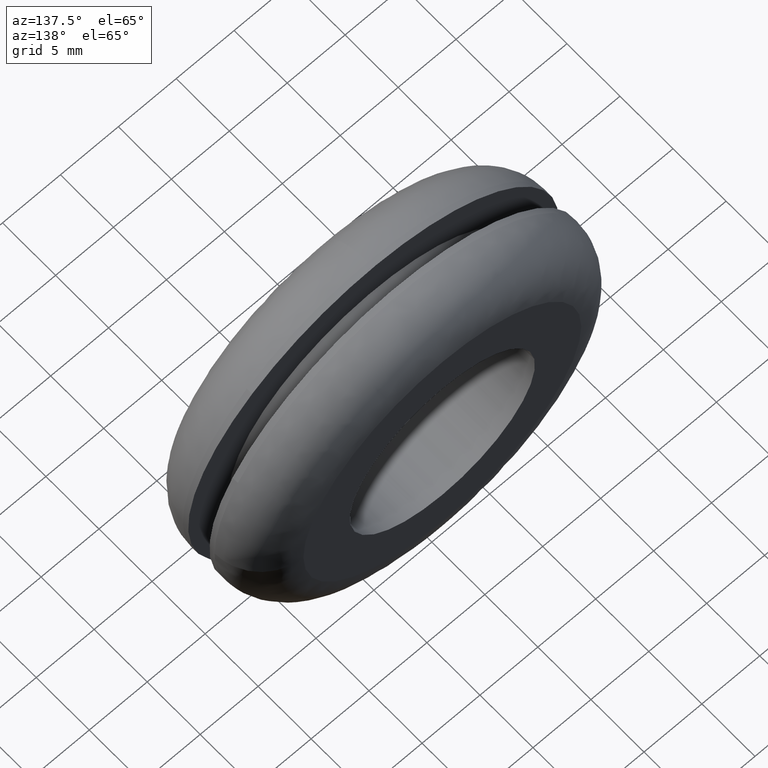
[diagram: clean part render]
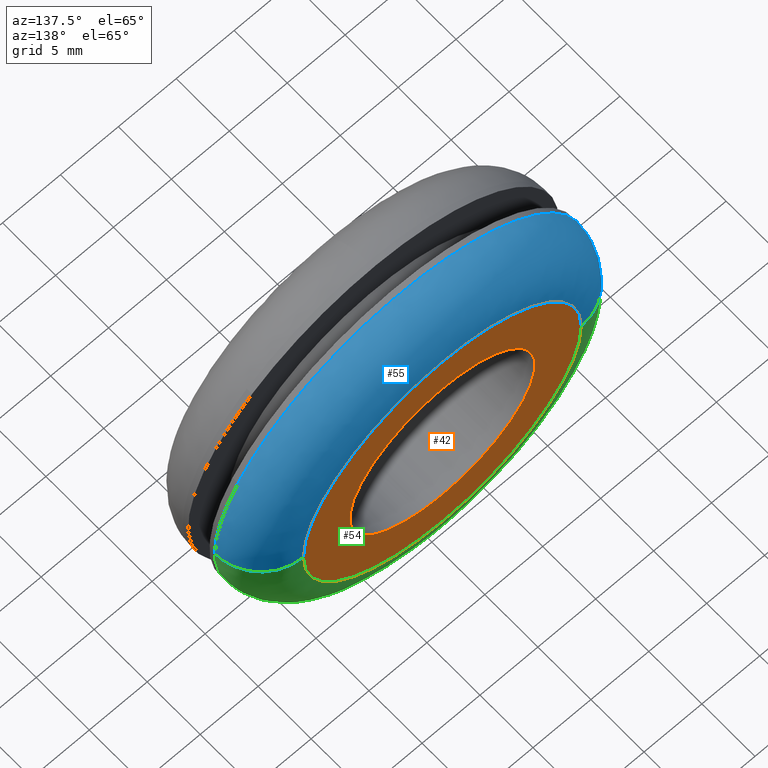
[diagram: same view with three faces highlighted in distinct colors, each labeled with its STEP entity id]
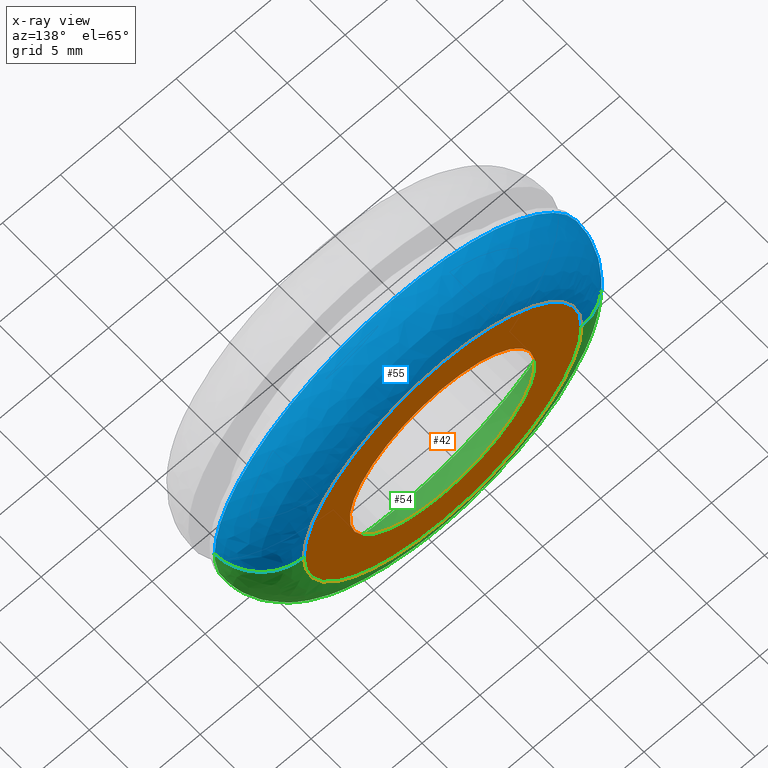
[diagram: x-ray of the same camera — body ghosted, the three highlighted faces saturated]
A machine part, auxiliary view with three faces highlighted in distinct colors.
The next image is the same camera in x-ray (body ghosted, the three faces saturated) — at least one of them is partly hidden behind the body in this view.
Their STEP definitions:

[orange] entity #42 — the highlighted planar face has unit normal (0, -1, 0).
#42=ADVANCED_FACE('',(#79,#80),#78,.F.);
#78=PLANE('',#235);
#79=FACE_OUTER_BOUND('',#236,.T.);
#80=FACE_BOUND('',#237,.T.);
#232=CARTESIAN_POINT('',(-2.49415316305E+001,1.10000000000E+001,2.76000000010E+001));
#233=DIRECTION('',(0.00000000000E+000,-1.00000000000E+000,0.00000000000E+000));
#234=DIRECTION('',(0.00000000000E+000,0.00000000000E+000,-1.00000000000E+000));
#235=AXIS2_PLACEMENT_3D('',#232,#233,#234);
#236=EDGE_LOOP('',(#400,#401,#402));
#237=EDGE_LOOP('',(#403,#404,#405));
#400=ORIENTED_EDGE('',*,*,#496,.F.);
#401=ORIENTED_EDGE('',*,*,#497,.F.);
#402=ORIENTED_EDGE('',*,*,#498,.F.);
#403=ORIENTED_EDGE('',*,*,#499,.T.);
#404=ORIENTED_EDGE('',*,*,#500,.T.);
#405=ORIENTED_EDGE('',*,*,#501,.T.);
#496=EDGE_CURVE('',#616,#617,#618,.T.);
#497=EDGE_CURVE('',#624,#616,#625,.T.);
#498=EDGE_CURVE('',#617,#624,#631,.T.);
#499=EDGE_CURVE('',#637,#638,#639,.T.);
#500=EDGE_CURVE('',#638,#645,#646,.T.);
#501=EDGE_CURVE('',#645,#637,#652,.T.);
#616=VERTEX_POINT('',#916);
#617=VERTEX_POINT('',#917);
#618=CIRCLE('',#921,1.20000000007E+001);
#624=VERTEX_POINT('',#922);
#625=CIRCLE('',#926,1.20000000007E+001);
#631=CIRCLE('',#930,1.20000000007E+001);
#637=VERTEX_POINT('',#931);
#638=VERTEX_POINT('',#932);
#639=CIRCLE('',#936,8.00000000000E+000);
#645=VERTEX_POINT('',#937);
#646=CIRCLE('',#941,8.00000000000E+000);
#652=CIRCLE('',#945,8.00000000000E+000);
#916=CARTESIAN_POINT('',(-1.20000000010E+001,1.10000000000E+001,-2.83271043886E-013));
#917=CARTESIAN_POINT('',(-2.88657986403E-015,1.10000000000E+001,-1.20000000014E+001));
#918=CARTESIAN_POINT('',(-3.13653991668E-010,1.10000000000E+001,-7.16070758244E-010));
#919=DIRECTION('',(7.40588554142E-016,-1.00000000000E+000,6.34885420064E-015));
#920=DIRECTION('',(2.61379529132E-011,-6.34885420062E-015,-1.00000000000E+000));
#921=AXIS2_PLACEMENT_3D('',#918,#919,#920);
#922=CARTESIAN_POINT('',(1.19999999358E+001,1.10000000000E+001,1.24539555908E-003));
#923=CARTESIAN_POINT('',(-3.13653991668E-010,1.10000000000E+001,-7.16070758244E-010));
#924=DIRECTION('',(7.40588554142E-016,-1.00000000000E+000,6.34885420064E-015));
#925=DIRECTION('',(2.61379529132E-011,-6.34885420062E-015,-1.00000000000E+000));
#926=AXIS2_PLACEMENT_3D('',#923,#924,#925);
#927=CARTESIAN_POINT('',(-3.13653991668E-010,1.10000000000E+001,-7.16070758244E-010));
#928=DIRECTION('',(7.40588554142E-016,-1.00000000000E+000,6.34885420064E-015));
#929=DIRECTION('',(2.61379529132E-011,-6.34885420062E-015,-1.00000000000E+000));
#930=AXIS2_PLACEMENT_3D('',#927,#928,#929);
#931=CARTESIAN_POINT('',(-2.22044604925E-015,1.10000000000E+001,-8.00000000000E+000));
#932=CARTESIAN_POINT('',(7.94391288725E+000,1.10000000000E+001,-9.45646889616E-001));
#933=CARTESIAN_POINT('',(6.56807941368E-013,1.10000000000E+001,1.44151357517E-012));
#934=DIRECTION('',(-2.46291158757E-015,-1.00000000000E+000,-1.88391052431E-014));
#935=DIRECTION('',(-8.20177259442E-014,1.88391052431E-014,-1.00000000000E+000));
#936=AXIS2_PLACEMENT_3D('',#933,#934,#935);
#937=CARTESIAN_POINT('',(-7.94407655622E+000,1.10000000000E+001,9.44270972151E-001));
#938=CARTESIAN_POINT('',(6.56807941368E-013,1.10000000000E+001,1.44151357517E-012));
#939=DIRECTION('',(-2.46291158757E-015,-1.00000000000E+000,-1.88391052431E-014));
#940=DIRECTION('',(-8.20177259442E-014,1.88391052431E-014,-1.00000000000E+000));
#941=AXIS2_PLACEMENT_3D('',#938,#939,#940);
#942=CARTESIAN_POINT('',(6.56807941368E-013,1.10000000000E+001,1.44151357517E-012));
#943=DIRECTION('',(-2.46291158757E-015,-1.00000000000E+000,-1.88391052431E-014));
#944=DIRECTION('',(-8.20177259442E-014,1.88391052431E-014,-1.00000000000E+000));
#945=AXIS2_PLACEMENT_3D('',#942,#943,#944);

[blue] entity #55 — the highlighted face is a freeform B-spline surface patch.
#55=ADVANCED_FACE('',(#211),#210,.T.);
#210=( BOUNDED_SURFACE() B_SPLINE_SURFACE( 2,2,((#362,#363,#364,#365,#366),(#367,#368,#369,#370,#371),(#372,#373,#374,#375,#376),(#377,#378,#379,#380,#381),(#382,#383,#384,#385,#386)), .UNSPECIFIED.,.F.,.F.,.F.) B_SPLINE_SURFACE_WITH_KNOTS((3,2,3),(3,2,3),(0.00000000000E+000,5.00000000000E-001,1.00000000000E+000),(0.00000000000E+000,5.00000000000E-001,1.00000000000E+000), .UNSPECIFIED. ) GEOMETRIC_REPRESENTATION_ITEM() RATIONAL_B_SPLINE_SURFACE(((1.00000000000E+000,7.07106780924E-001,1.00000000000E+000,7.07106780924E-001,1.00000000000E+000),(7.07106781187E-001,4.99999999814E-001,7.07106781187E-001,4.99999999814E-001,7.07106781187E-001),(1.00000000000E+000,7.07106780924E-001,1.00000000000E+000,7.07106780924E-001,1.00000000000E+000),(7.07106781187E-001,4.99999999814E-001,7.07106781187E-001,4.99999999814E-001,7.07106781187E-001),(1.00000000000E+000,7.07106780924E-001,1.00000000000E+000,7.07106780924E-001,1.00000000000E+000))) REPRESENTATION_ITEM('') SURFACE() );
#211=FACE_OUTER_BOUND('',#387,.T.);
#362=CARTESIAN_POINT('',(8.00000000000E+000,6.99999999405E+000,-3.51498376782E-013));
#363=CARTESIAN_POINT('',(7.99999999405E+000,1.09999999970E+001,-2.80384908051E-013));
#364=CARTESIAN_POINT('',(1.19999999970E+001,1.10000000000E+001,-2.80384924176E-013));
#365=CARTESIAN_POINT('',(1.60000000000E+001,1.10000000030E+001,-2.80384940301E-013));
#366=CARTESIAN_POINT('',(1.60000000000E+001,7.00000000000E+000,-3.51498409032E-013));
#367=CARTESIAN_POINT('',(8.00000000000E+000,6.99999999405E+000,7.99999999999E+000));
#368=CARTESIAN_POINT('',(7.99999999405E+000,1.09999999970E+001,7.99999999404E+000));
#369=CARTESIAN_POINT('',(1.19999999970E+001,1.10000000000E+001,1.19999999970E+001));
#370=CARTESIAN_POINT('',(1.60000000000E+001,1.10000000030E+001,1.60000000000E+001));
#371=CARTESIAN_POINT('',(1.60000000000E+001,7.00000000000E+000,1.60000000000E+001));
#372=CARTESIAN_POINT('',(1.01729083553E-011,6.99999999405E+000,7.99999999999E+000));
#373=CARTESIAN_POINT('',(9.45221133687E-012,1.09999999970E+001,7.99999999404E+000));
#374=CARTESIAN_POINT('',(9.45245628187E-012,1.10000000000E+001,1.19999999970E+001));
#375=CARTESIAN_POINT('',(9.45270122687E-012,1.10000000030E+001,1.60000000000E+001));
#376=CARTESIAN_POINT('',(1.01733982453E-011,7.00000000000E+000,1.60000000000E+001));
#377=CARTESIAN_POINT('',(-7.99999999998E+000,6.99999999405E+000,7.99999999999E+000));
#378=CARTESIAN_POINT('',(-7.99999999403E+000,1.09999999970E+001,7.99999999404E+000));
#379=CARTESIAN_POINT('',(-1.19999999970E+001,1.10000000000E+001,1.19999999970E+001));
#380=CARTESIAN_POINT('',(-1.60000000000E+001,1.10000000030E+001,1.60000000000E+001));
#381=CARTESIAN_POINT('',(-1.60000000000E+001,6.99999999999E+000,1.60000000000E+001));
#382=CARTESIAN_POINT('',(-7.99999999998E+000,6.99999999405E+000,-3.50518594630E-013));
#383=CARTESIAN_POINT('',(-7.99999999403E+000,1.09999999970E+001,-2.79405125900E-013));
#384=CARTESIAN_POINT('',(-1.19999999970E+001,1.10000000000E+001,-2.78915250949E-013));
#385=CARTESIAN_POINT('',(-1.60000000000E+001,1.10000000030E+001,-2.78425375998E-013));
#386=CARTESIAN_POINT('',(-1.60000000000E+001,6.99999999999E+000,-3.49538844729E-013));
#387=EDGE_LOOP('',(#478,#479,#480,#481,#482,#483));
#478=ORIENTED_EDGE('',*,*,#497,.T.);
#479=ORIENTED_EDGE('',*,*,#530,.T.);
#480=ORIENTED_EDGE('',*,*,#520,.F.);
#481=ORIENTED_EDGE('',*,*,#519,.F.);
#482=ORIENTED_EDGE('',*,*,#527,.F.);
#483=ORIENTED_EDGE('',*,*,#531,.F.);
#497=EDGE_CURVE('',#624,#616,#625,.T.);
#519=EDGE_CURVE('',#771,#772,#773,.T.);
#520=EDGE_CURVE('',#772,#779,#780,.T.);
#527=EDGE_CURVE('',#819,#771,#826,.T.);
#530=EDGE_CURVE('',#616,#779,#844,.T.);
#531=EDGE_CURVE('',#624,#819,#850,.T.);
#616=VERTEX_POINT('',#916);
#624=VERTEX_POINT('',#922);
#625=CIRCLE('',#926,1.20000000007E+001);
#771=VERTEX_POINT('',#1013);
#772=VERTEX_POINT('',#1014);
#773=CIRCLE('',#1018,1.60000000000E+001);
#779=VERTEX_POINT('',#1019);
#780=CIRCLE('',#1023,1.60000000000E+001);
#819=VERTEX_POINT('',#1043);
#826=CIRCLE('',#1051,1.60000000000E+001);
#844=(BOUNDED_CURVE() B_SPLINE_CURVE(2,(#1060,#1061,#1062),.UNSPECIFIED.,.F.,.F.) B_SPLINE_CURVE_WITH_KNOTS((3,3),(5.00000000000E-001,1.00000000000E+000),.UNSPECIFIED.) CURVE() GEOMETRIC_REPRESENTATION_ITEM() RATIONAL_B_SPLINE_CURVE((1.00000000000E+000,7.07106780924E-001,1.00000000000E+000)) REPRESENTATION_ITEM('') );
#850=(BOUNDED_CURVE() B_SPLINE_CURVE(3,(#1063,#1064,#1065,#1066,#1067),.UNSPECIFIED.,.F.,.F.) B_SPLINE_CURVE_WITH_KNOTS((4,1,4),(4.99999892550E-001,7.49999938167E-001,1.00000000000E+000),.UNSPECIFIED.) CURVE() GEOMETRIC_REPRESENTATION_ITEM() RATIONAL_B_SPLINE_CURVE((1.00000000000E+000,1.00000000000E+000,1.00000000000E+000,1.00000000000E+000,1.00000000000E+000)) REPRESENTATION_ITEM('') );
#916=CARTESIAN_POINT('',(-1.20000000010E+001,1.10000000000E+001,-2.83271043886E-013));
#922=CARTESIAN_POINT('',(1.19999999358E+001,1.10000000000E+001,1.24539555908E-003));
#923=CARTESIAN_POINT('',(-3.13653991668E-010,1.10000000000E+001,-7.16070758244E-010));
#924=DIRECTION('',(7.40588554142E-016,-1.00000000000E+000,6.34885420064E-015));
#925=DIRECTION('',(2.61379529132E-011,-6.34885420062E-015,-1.00000000000E+000));
#926=AXIS2_PLACEMENT_3D('',#923,#924,#925);
#1013=CARTESIAN_POINT('',(1.39991442718E+001,7.00000000000E+000,7.74751312723E+000));
#1014=CARTESIAN_POINT('',(-1.59987367073E+001,7.00000000004E+000,2.01056638142E-001));
#1015=CARTESIAN_POINT('',(4.70734562441E-014,7.00000000000E+000,6.07514039075E-013));
#1016=DIRECTION('',(-1.29365344207E-016,-1.00000000000E+000,-3.40437426877E-014));
#1017=DIRECTION('',(-8.74946516989E-001,1.65978342181E-014,-4.84219570452E-001));
#1018=AXIS2_PLACEMENT_3D('',#1015,#1016,#1017);
#1019=CARTESIAN_POINT('',(-1.60000000000E+001,6.99999999996E+000,-3.53465592118E-013));
#1020=CARTESIAN_POINT('',(-9.76996261670E-015,7.00000000006E+000,-1.33226762955E-014));
#1021=DIRECTION('',(6.33867023561E-012,-1.00000000000E+000,3.75939600714E-010));
#1022=DIRECTION('',(9.99921044204E-001,1.61409774435E-012,-1.25660398839E-002));
#1023=AXIS2_PLACEMENT_3D('',#1020,#1021,#1022);
#1043=CARTESIAN_POINT('',(1.60000000000E+001,6.99999999996E+000,3.24191980284E-006));
#1048=CARTESIAN_POINT('',(2.17070805775E-012,7.00000000048E+000,-8.43769498715E-015));
#1049=DIRECTION('',(-3.23520681420E-011,-1.00000000000E+000,-6.56687993727E-011));
#1050=DIRECTION('',(-9.97565673840E-001,2.76940137489E-011,6.97332515756E-002));
#1051=AXIS2_PLACEMENT_3D('',#1048,#1049,#1050);
#1060=CARTESIAN_POINT('',(-1.19999999970E+001,1.10000000000E+001,-2.81854403266E-013));
#1061=CARTESIAN_POINT('',(-1.60000000000E+001,1.10000000030E+001,-2.82344245755E-013));
#1062=CARTESIAN_POINT('',(-1.60000000000E+001,6.99999999999E+000,-3.53457714486E-013));
#1063=CARTESIAN_POINT('',(1.19999987814E+001,1.10000000000E+001,-2.79480142668E-013));
#1064=CARTESIAN_POINT('',(1.30324484540E+001,1.10073771896E+001,-2.79188153724E-013));
#1065=CARTESIAN_POINT('',(1.51369406708E+001,1.01369416966E+001,-2.94068747595E-013));
#1066=CARTESIAN_POINT('',(1.60073768780E+001,8.03244974159E+000,-3.30712347363E-013));
#1067=CARTESIAN_POINT('',(1.60000000000E+001,7.00000000000E+000,-3.48758059469E-013));

[green] entity #54 — the highlighted face is a freeform B-spline surface patch.
#54=ADVANCED_FACE('',(#201),#200,.T.);
#200=( BOUNDED_SURFACE() B_SPLINE_SURFACE( 2,2,((#336,#337,#338,#339,#340),(#341,#342,#343,#344,#345),(#346,#347,#348,#349,#350),(#351,#352,#353,#354,#355),(#356,#357,#358,#359,#360)), .UNSPECIFIED.,.F.,.F.,.F.) B_SPLINE_SURFACE_WITH_KNOTS((3,2,3),(3,2,3),(0.00000000000E+000,5.00000000000E-001,1.00000000000E+000),(0.00000000000E+000,5.00000000000E-001,1.00000000000E+000), .UNSPECIFIED. ) GEOMETRIC_REPRESENTATION_ITEM() RATIONAL_B_SPLINE_SURFACE(((1.00000000000E+000,7.07106780924E-001,1.00000000000E+000,7.07106780924E-001,1.00000000000E+000),(7.07106781187E-001,4.99999999814E-001,7.07106781187E-001,4.99999999814E-001,7.07106781187E-001),(1.00000000000E+000,7.07106780924E-001,1.00000000000E+000,7.07106780924E-001,1.00000000000E+000),(7.07106781187E-001,4.99999999814E-001,7.07106781187E-001,4.99999999814E-001,7.07106781187E-001),(1.00000000000E+000,7.07106780924E-001,1.00000000000E+000,7.07106780924E-001,1.00000000000E+000))) REPRESENTATION_ITEM('') SURFACE() );
#201=FACE_OUTER_BOUND('',#361,.T.);
#336=CARTESIAN_POINT('',(-7.99999999998E+000,6.99999999405E+000,-3.52478029509E-013));
#337=CARTESIAN_POINT('',(-7.99999999403E+000,1.09999999970E+001,-2.81364560777E-013));
#338=CARTESIAN_POINT('',(-1.19999999970E+001,1.10000000000E+001,-2.81854403266E-013));
#339=CARTESIAN_POINT('',(-1.60000000000E+001,1.10000000030E+001,-2.82344245755E-013));
#340=CARTESIAN_POINT('',(-1.60000000000E+001,6.99999999999E+000,-3.53457714486E-013));
#341=CARTESIAN_POINT('',(-7.99999999998E+000,6.99999999405E+000,-7.99999999999E+000));
#342=CARTESIAN_POINT('',(-7.99999999403E+000,1.09999999970E+001,-7.99999999404E+000));
#343=CARTESIAN_POINT('',(-1.19999999970E+001,1.10000000000E+001,-1.19999999970E+001));
#344=CARTESIAN_POINT('',(-1.60000000000E+001,1.10000000030E+001,-1.60000000000E+001));
#345=CARTESIAN_POINT('',(-1.60000000000E+001,7.00000000000E+000,-1.60000000000E+001));
#346=CARTESIAN_POINT('',(1.01729082906E-011,6.99999999405E+000,-7.99999999999E+000));
#347=CARTESIAN_POINT('',(9.45221127215E-012,1.09999999970E+001,-7.99999999404E+000));
#348=CARTESIAN_POINT('',(9.45245618480E-012,1.10000000000E+001,-1.19999999970E+001));
#349=CARTESIAN_POINT('',(9.45270109745E-012,1.10000000030E+001,-1.60000000000E+001));
#350=CARTESIAN_POINT('',(1.01733981159E-011,7.00000000000E+000,-1.60000000000E+001));
#351=CARTESIAN_POINT('',(8.00000000000E+000,6.99999999405E+000,-7.99999999999E+000));
#352=CARTESIAN_POINT('',(7.99999999405E+000,1.09999999970E+001,-7.99999999404E+000));
#353=CARTESIAN_POINT('',(1.19999999970E+001,1.10000000000E+001,-1.19999999970E+001));
#354=CARTESIAN_POINT('',(1.60000000000E+001,1.10000000030E+001,-1.60000000000E+001));
#355=CARTESIAN_POINT('',(1.60000000000E+001,7.00000000000E+000,-1.60000000000E+001));
#356=CARTESIAN_POINT('',(8.00000000000E+000,6.99999999405E+000,-3.51498376782E-013));
#357=CARTESIAN_POINT('',(7.99999999405E+000,1.09999999970E+001,-2.80384908051E-013));
#358=CARTESIAN_POINT('',(1.19999999970E+001,1.10000000000E+001,-2.80384924176E-013));
#359=CARTESIAN_POINT('',(1.60000000000E+001,1.10000000030E+001,-2.80384940301E-013));
#360=CARTESIAN_POINT('',(1.60000000000E+001,7.00000000000E+000,-3.51498409032E-013));
#361=EDGE_LOOP('',(#470,#471,#472,#473,#474,#475,#476,#477));
#470=ORIENTED_EDGE('',*,*,#526,.F.);
#471=ORIENTED_EDGE('',*,*,#525,.F.);
#472=ORIENTED_EDGE('',*,*,#524,.F.);
#473=ORIENTED_EDGE('',*,*,#521,.F.);
#474=ORIENTED_EDGE('',*,*,#530,.F.);
#475=ORIENTED_EDGE('',*,*,#496,.T.);
#476=ORIENTED_EDGE('',*,*,#498,.T.);
#477=ORIENTED_EDGE('',*,*,#531,.T.);
#496=EDGE_CURVE('',#616,#617,#618,.T.);
#498=EDGE_CURVE('',#617,#624,#631,.T.);
#521=EDGE_CURVE('',#779,#786,#787,.T.);
#524=EDGE_CURVE('',#786,#805,#806,.T.);
#525=EDGE_CURVE('',#805,#812,#813,.T.);
#526=EDGE_CURVE('',#812,#819,#820,.T.);
#530=EDGE_CURVE('',#616,#779,#844,.T.);
#531=EDGE_CURVE('',#624,#819,#850,.T.);
#616=VERTEX_POINT('',#916);
#617=VERTEX_POINT('',#917);
#618=CIRCLE('',#921,1.20000000007E+001);
#624=VERTEX_POINT('',#922);
#631=CIRCLE('',#930,1.20000000007E+001);
#779=VERTEX_POINT('',#1019);
#786=VERTEX_POINT('',#1024);
#787=CIRCLE('',#1028,1.60000000000E+001);
#805=VERTEX_POINT('',#1033);
#806=CIRCLE('',#1037,1.60000000000E+001);
#812=VERTEX_POINT('',#1038);
#813=CIRCLE('',#1042,1.60000000000E+001);
#819=VERTEX_POINT('',#1043);
#820=CIRCLE('',#1047,1.60000000000E+001);
#844=(BOUNDED_CURVE() B_SPLINE_CURVE(2,(#1060,#1061,#1062),.UNSPECIFIED.,.F.,.F.) B_SPLINE_CURVE_WITH_KNOTS((3,3),(5.00000000000E-001,1.00000000000E+000),.UNSPECIFIED.) CURVE() GEOMETRIC_REPRESENTATION_ITEM() RATIONAL_B_SPLINE_CURVE((1.00000000000E+000,7.07106780924E-001,1.00000000000E+000)) REPRESENTATION_ITEM('') );
#850=(BOUNDED_CURVE() B_SPLINE_CURVE(3,(#1063,#1064,#1065,#1066,#1067),.UNSPECIFIED.,.F.,.F.) B_SPLINE_CURVE_WITH_KNOTS((4,1,4),(4.99999892550E-001,7.49999938167E-001,1.00000000000E+000),.UNSPECIFIED.) CURVE() GEOMETRIC_REPRESENTATION_ITEM() RATIONAL_B_SPLINE_CURVE((1.00000000000E+000,1.00000000000E+000,1.00000000000E+000,1.00000000000E+000,1.00000000000E+000)) REPRESENTATION_ITEM('') );
#916=CARTESIAN_POINT('',(-1.20000000010E+001,1.10000000000E+001,-2.83271043886E-013));
#917=CARTESIAN_POINT('',(-2.88657986403E-015,1.10000000000E+001,-1.20000000014E+001));
#918=CARTESIAN_POINT('',(-3.13653991668E-010,1.10000000000E+001,-7.16070758244E-010));
#919=DIRECTION('',(7.40588554142E-016,-1.00000000000E+000,6.34885420064E-015));
#920=DIRECTION('',(2.61379529132E-011,-6.34885420062E-015,-1.00000000000E+000));
#921=AXIS2_PLACEMENT_3D('',#918,#919,#920);
#922=CARTESIAN_POINT('',(1.19999999358E+001,1.10000000000E+001,1.24539555908E-003));
#927=CARTESIAN_POINT('',(-3.13653991668E-010,1.10000000000E+001,-7.16070758244E-010));
#928=DIRECTION('',(7.40588554142E-016,-1.00000000000E+000,6.34885420064E-015));
#929=DIRECTION('',(2.61379529132E-011,-6.34885420062E-015,-1.00000000000E+000));
#930=AXIS2_PLACEMENT_3D('',#927,#928,#929);
#1019=CARTESIAN_POINT('',(-1.60000000000E+001,6.99999999996E+000,-3.53465592118E-013));
#1024=CARTESIAN_POINT('',(-1.39991428391E+001,6.99999999706E+000,-7.74751571609E+000));
#1025=CARTESIAN_POINT('',(-9.76996261670E-015,7.00000000006E+000,-1.33226762955E-014));
#1026=DIRECTION('',(6.33867023561E-012,-1.00000000000E+000,3.75939600714E-010));
#1027=DIRECTION('',(9.99921044204E-001,1.61409774435E-012,-1.25660398839E-002));
#1028=AXIS2_PLACEMENT_3D('',#1025,#1026,#1027);
#1033=CARTESIAN_POINT('',(0.00000000000E+000,7.00000000000E+000,-1.60000000000E+001));
#1034=CARTESIAN_POINT('',(-9.76996261670E-015,7.00000000006E+000,-1.33226762955E-014));
#1035=DIRECTION('',(6.33867023561E-012,-1.00000000000E+000,3.75939600714E-010));
#1036=DIRECTION('',(9.99921044204E-001,1.61409774435E-012,-1.25660398839E-002));
#1037=AXIS2_PLACEMENT_3D('',#1034,#1035,#1036);
#1038=CARTESIAN_POINT('',(1.59610507814E+001,7.00000000004E+000,-1.11573202521E+000));
#1039=CARTESIAN_POINT('',(-1.33848487849E-012,7.00000000004E+000,1.43351996940E-012));
#1040=DIRECTION('',(-3.92523114667E-017,-1.00000000000E+000,2.54296583790E-012));
#1041=DIRECTION('',(-8.36553049055E-014,2.54296583790E-012,1.00000000000E+000));
#1042=AXIS2_PLACEMENT_3D('',#1039,#1040,#1041);
#1043=CARTESIAN_POINT('',(1.60000000000E+001,6.99999999996E+000,3.24191980284E-006));
#1044=CARTESIAN_POINT('',(2.17070805775E-012,7.00000000048E+000,-8.43769498715E-015));
#1045=DIRECTION('',(-3.23520681420E-011,-1.00000000000E+000,-6.56687993727E-011));
#1046=DIRECTION('',(-9.97565673840E-001,2.76940137489E-011,6.97332515756E-002));
#1047=AXIS2_PLACEMENT_3D('',#1044,#1045,#1046);
#1060=CARTESIAN_POINT('',(-1.19999999970E+001,1.10000000000E+001,-2.81854403266E-013));
#1061=CARTESIAN_POINT('',(-1.60000000000E+001,1.10000000030E+001,-2.82344245755E-013));
#1062=CARTESIAN_POINT('',(-1.60000000000E+001,6.99999999999E+000,-3.53457714486E-013));
#1063=CARTESIAN_POINT('',(1.19999987814E+001,1.10000000000E+001,-2.79480142668E-013));
#1064=CARTESIAN_POINT('',(1.30324484540E+001,1.10073771896E+001,-2.79188153724E-013));
#1065=CARTESIAN_POINT('',(1.51369406708E+001,1.01369416966E+001,-2.94068747595E-013));
#1066=CARTESIAN_POINT('',(1.60073768780E+001,8.03244974159E+000,-3.30712347363E-013));
#1067=CARTESIAN_POINT('',(1.60000000000E+001,7.00000000000E+000,-3.48758059469E-013));